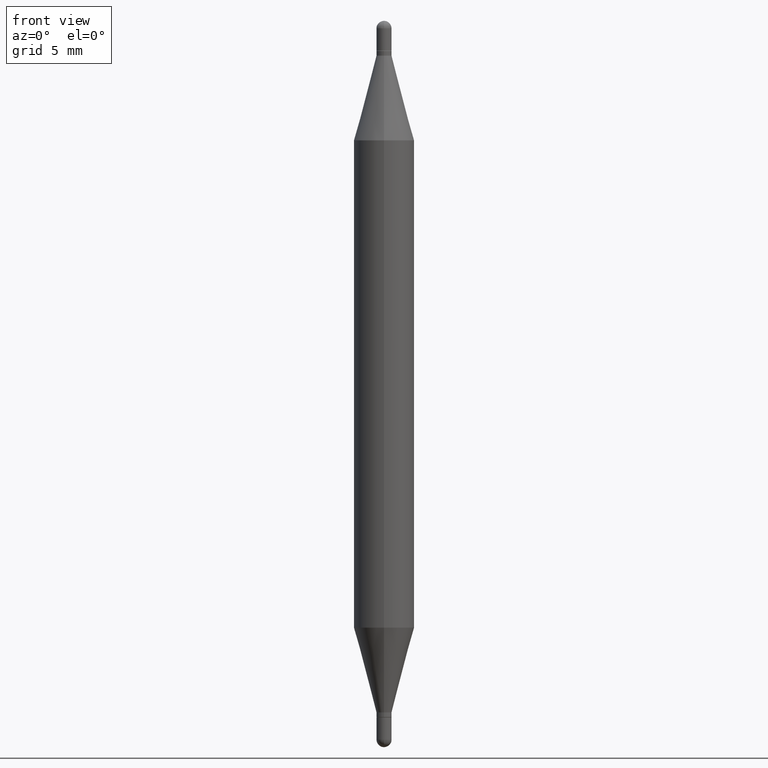
[diagram: clean part render]
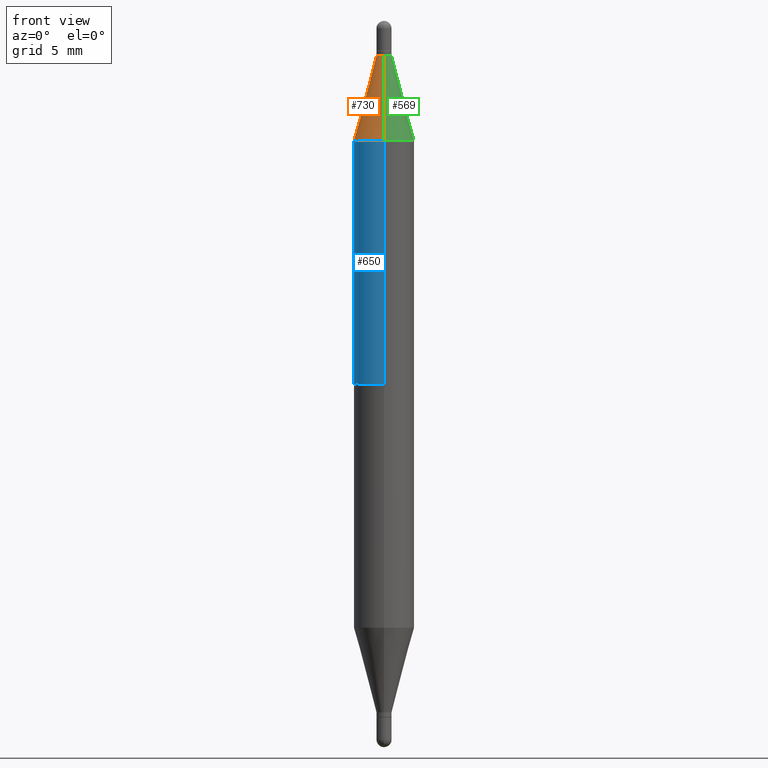
[diagram: same view with three faces highlighted in distinct colors, each labeled with its STEP entity id]
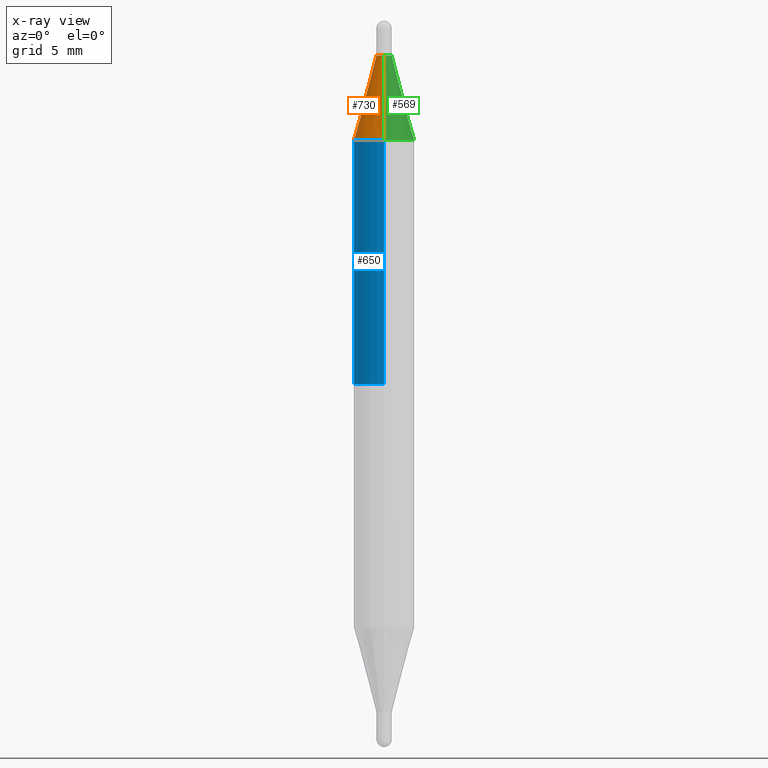
[diagram: x-ray of the same camera — body ghosted, the three highlighted faces saturated]
A machine part, front view with three faces highlighted in distinct colors.
The next image is the same camera in x-ray (body ghosted, the three faces saturated) — at least one of them is partly hidden behind the body in this view.
Their STEP definitions:

[orange] entity #730 — the highlighted conical surface has half-angle 15 deg.
#9 = ORIENTED_EDGE ( 'NONE', *, *, #171, .F. ) ;
#23 = DIRECTION ( 'NONE',  ( 2.448446106568060842E-29, 3.483878130583589894E-15, 1.000000000000000000 ) ) ;
#32 = DIRECTION ( 'NONE',  ( -2.448446106568060842E-29, -3.483878130583589894E-15, -1.000000000000000000 ) ) ;
#65 = EDGE_CURVE ( 'NONE', #862, #505, #986, .T. ) ;
#92 = VERTEX_POINT ( 'NONE', #566 ) ;
#94 = CARTESIAN_POINT ( 'NONE',  ( -4.364351673553608545E-16, -0.06250000000000084655, -0.2470331828749792180 ) ) ;
#118 = DIRECTION ( 'NONE',  ( 2.448446106568060842E-29, 3.483878130583589894E-15, 1.000000000000000000 ) ) ;
#120 = AXIS2_PLACEMENT_3D ( 'NONE', #896, #118, #815 ) ;
#146 = EDGE_CURVE ( 'NONE', #92, #505, #374, .T. ) ;
#171 = EDGE_CURVE ( 'NONE', #941, #92, #892, .T. ) ;
#172 = VECTOR ( 'NONE', #810, 39.37007874015748854 ) ;
#212 = CARTESIAN_POINT ( 'NONE',  ( 3.496381040179191585E-29, -2.533438838923632443E-16, -0.07199999999999993905 ) ) ;
#221 = CARTESIAN_POINT ( 'NONE',  ( 1.070237687652696216E-16, 0.01559999999999956734, -0.07199999999999999456 ) ) ;
#269 = DIRECTION ( 'NONE',  ( -6.982962677686265922E-15, -1.000000000000000000, 3.278217592397116257E-15 ) ) ;
#373 = CONICAL_SURFACE ( 'NONE', #803, 0.01559999999999982234, 0.2617993877991515173 ) ;
#374 = LINE ( 'NONE', #392, #172 ) ;
#392 = CARTESIAN_POINT ( 'NONE',  ( -1.089342177718695287E-16, -0.01560000000000007561, -0.07199999999999989742 ) ) ;
#505 = VERTEX_POINT ( 'NONE', #94 ) ;
#508 = EDGE_LOOP ( 'NONE', ( #9, #850, #526, #1102 ) ) ;
#526 = ORIENTED_EDGE ( 'NONE', *, *, #65, .T. ) ;
#554 = CARTESIAN_POINT ( 'NONE',  ( 4.287811248607512910E-16, 0.06249999999999911876, -0.2470331828749796621 ) ) ;
#559 = FACE_OUTER_BOUND ( 'NONE', #508, .T. ) ;
#566 = CARTESIAN_POINT ( 'NONE',  ( -1.089342177718695287E-16, -0.01560000000000007561, -0.07199999999999989742 ) ) ;
#618 = CARTESIAN_POINT ( 'NONE',  ( 3.067821725048732845E-29, -8.631381618369439646E-16, -0.2470331828749794401 ) ) ;
#635 = CARTESIAN_POINT ( 'NONE',  ( 1.070237687652701516E-16, 0.01559999999999956734, -0.07199999999999999456 ) ) ;
#712 = DIRECTION ( 'NONE',  ( -6.982962677686265133E-15, -1.000000000000000000, 3.283471146231123028E-15 ) ) ;
#730 = ADVANCED_FACE ( 'NONE', ( #559 ), #373, .T. ) ;
#749 = DIRECTION ( 'NONE',  ( 1.775627540710973780E-15, 0.2588190451025194627, -0.9659258262890687563 ) ) ;
#768 = AXIS2_PLACEMENT_3D ( 'NONE', #618, #23, #269 ) ;
#803 = AXIS2_PLACEMENT_3D ( 'NONE', #212, #32, #712 ) ;
#810 = DIRECTION ( 'NONE',  ( -1.807323732225338422E-15, -0.2588190451025261241, -0.9659258262890667579 ) ) ;
#815 = DIRECTION ( 'NONE',  ( -6.982962677686265133E-15, -1.000000000000000000, 3.283471146231123028E-15 ) ) ;
#850 = ORIENTED_EDGE ( 'NONE', *, *, #1005, .T. ) ;
#862 = VERTEX_POINT ( 'NONE', #554 ) ;
#892 = CIRCLE ( 'NONE', #120, 0.01559999999999982234 ) ;
#896 = CARTESIAN_POINT ( 'NONE',  ( 3.496381040179191585E-29, -2.533438838923632443E-16, -0.07199999999999993905 ) ) ;
#941 = VERTEX_POINT ( 'NONE', #635 ) ;
#962 = VECTOR ( 'NONE', #749, 39.37007874015747433 ) ;
#986 = CIRCLE ( 'NONE', #768, 0.06249999999999999306 ) ;
#1005 = EDGE_CURVE ( 'NONE', #941, #862, #1012, .T. ) ;
#1012 = LINE ( 'NONE', #221, #962 ) ;
#1102 = ORIENTED_EDGE ( 'NONE', *, *, #146, .F. ) ;

[blue] entity #650 — the highlighted cylindrical surface (edge-blend (fillet) strip) has radius 1.5875 mm, axis along (-0, -0, -1).
#12 = AXIS2_PLACEMENT_3D ( 'NONE', #552, #894, #1060 ) ;
#23 = DIRECTION ( 'NONE',  ( 2.448446106568060842E-29, 3.483878130583589894E-15, 1.000000000000000000 ) ) ;
#39 = DIRECTION ( 'NONE',  ( -2.448446106568060842E-29, -3.483878130583589894E-15, -1.000000000000000000 ) ) ;
#47 = CIRCLE ( 'NONE', #825, 0.06250000000000000000 ) ;
#65 = EDGE_CURVE ( 'NONE', #862, #505, #986, .T. ) ;
#72 = EDGE_LOOP ( 'NONE', ( #592, #782, #873, #258 ) ) ;
#94 = CARTESIAN_POINT ( 'NONE',  ( -4.364351673553608545E-16, -0.06250000000000084655, -0.2470331828749792180 ) ) ;
#99 = VECTOR ( 'NONE', #39, 39.37007874015748143 ) ;
#124 = FACE_OUTER_BOUND ( 'NONE', #72, .T. ) ;
#164 = DIRECTION ( 'NONE',  ( 0.000000000000000000, 1.000000000000000000, -4.370956789862821150E-15 ) ) ;
#218 = EDGE_CURVE ( 'NONE', #679, #601, #47, .T. ) ;
#258 = ORIENTED_EDGE ( 'NONE', *, *, #965, .F. ) ;
#269 = DIRECTION ( 'NONE',  ( -6.982962677686265922E-15, -1.000000000000000000, 3.278217592397116257E-15 ) ) ;
#290 = LINE ( 'NONE', #1048, #99 ) ;
#505 = VERTEX_POINT ( 'NONE', #94 ) ;
#552 = CARTESIAN_POINT ( 'NONE',  ( 0.000000000000000000, -5.228321854365732350E-15, -1.500000000000000444 ) ) ;
#554 = CARTESIAN_POINT ( 'NONE',  ( 4.287811248607512910E-16, 0.06249999999999911876, -0.2470331828749796621 ) ) ;
#564 = LINE ( 'NONE', #991, #1098 ) ;
#577 = DIRECTION ( 'NONE',  ( -0.000000000000000000, -3.485547902910486918E-15, -1.000000000000000000 ) ) ;
#580 = EDGE_CURVE ( 'NONE', #862, #601, #564, .T. ) ;
#592 = ORIENTED_EDGE ( 'NONE', *, *, #65, .F. ) ;
#601 = VERTEX_POINT ( 'NONE', #634 ) ;
#618 = CARTESIAN_POINT ( 'NONE',  ( 3.067821725048732845E-29, -8.631381618369439646E-16, -0.2470331828749794401 ) ) ;
#634 = CARTESIAN_POINT ( 'NONE',  ( 4.287811248607452266E-16, 0.06249999999999738404, -0.7500000000000004441 ) ) ;
#639 = DIRECTION ( 'NONE',  ( -2.448446106568060842E-29, -3.483878130583589894E-15, -1.000000000000000000 ) ) ;
#650 = ADVANCED_FACE ( 'NONE', ( #124 ), #709, .T. ) ;
#679 = VERTEX_POINT ( 'NONE', #813 ) ;
#709 = CYLINDRICAL_SURFACE ( 'NONE', #12, 0.06250000000000000000 ) ;
#768 = AXIS2_PLACEMENT_3D ( 'NONE', #618, #23, #269 ) ;
#782 = ORIENTED_EDGE ( 'NONE', *, *, #580, .T. ) ;
#813 = CARTESIAN_POINT ( 'NONE',  ( -4.364351673553731805E-16, -0.06250000000000260902, -0.7499999999999998890 ) ) ;
#825 = AXIS2_PLACEMENT_3D ( 'NONE', #1104, #577, #164 ) ;
#862 = VERTEX_POINT ( 'NONE', #554 ) ;
#873 = ORIENTED_EDGE ( 'NONE', *, *, #218, .F. ) ;
#894 = DIRECTION ( 'NONE',  ( -2.448446106568060842E-29, -3.483878130583589894E-15, -1.000000000000000000 ) ) ;
#965 = EDGE_CURVE ( 'NONE', #505, #679, #290, .T. ) ;
#986 = CIRCLE ( 'NONE', #768, 0.06249999999999999306 ) ;
#991 = CARTESIAN_POINT ( 'NONE',  ( 4.287811248607206733E-16, 0.06249999999999477501, -1.500000000000000666 ) ) ;
#1048 = CARTESIAN_POINT ( 'NONE',  ( -4.364351673553916201E-16, -0.06250000000000521805, -1.500000000000000222 ) ) ;
#1060 = DIRECTION ( 'NONE',  ( -6.982962677686265922E-15, -1.000000000000000000, 4.370956789862821150E-15 ) ) ;
#1098 = VECTOR ( 'NONE', #639, 39.37007874015748143 ) ;
#1104 = CARTESIAN_POINT ( 'NONE',  ( 1.836334579926045982E-29, -2.615413256428038450E-15, -0.7500000000000002220 ) ) ;

[green] entity #569 — the highlighted conical surface has half-angle 15 deg.
#34 = DIRECTION ( 'NONE',  ( -6.982962677686265133E-15, -1.000000000000000000, 3.283471146231123028E-15 ) ) ;
#92 = VERTEX_POINT ( 'NONE', #566 ) ;
#94 = CARTESIAN_POINT ( 'NONE',  ( -4.364351673553608545E-16, -0.06250000000000084655, -0.2470331828749792180 ) ) ;
#146 = EDGE_CURVE ( 'NONE', #92, #505, #374, .T. ) ;
#172 = VECTOR ( 'NONE', #810, 39.37007874015748854 ) ;
#221 = CARTESIAN_POINT ( 'NONE',  ( 1.070237687652696216E-16, 0.01559999999999956734, -0.07199999999999999456 ) ) ;
#247 = AXIS2_PLACEMENT_3D ( 'NONE', #388, #633, #481 ) ;
#302 = FACE_OUTER_BOUND ( 'NONE', #843, .T. ) ;
#306 = DIRECTION ( 'NONE',  ( -6.982962677686265133E-15, -1.000000000000000000, 3.283471146231123028E-15 ) ) ;
#374 = LINE ( 'NONE', #392, #172 ) ;
#386 = CARTESIAN_POINT ( 'NONE',  ( 3.496381040179191585E-29, -2.533438838923632443E-16, -0.07199999999999993905 ) ) ;
#388 = CARTESIAN_POINT ( 'NONE',  ( 3.067821725048732845E-29, -8.631381618369439646E-16, -0.2470331828749794401 ) ) ;
#392 = CARTESIAN_POINT ( 'NONE',  ( -1.089342177718695287E-16, -0.01560000000000007561, -0.07199999999999989742 ) ) ;
#481 = DIRECTION ( 'NONE',  ( -6.982962677686265922E-15, -1.000000000000000000, 3.278217592397116257E-15 ) ) ;
#505 = VERTEX_POINT ( 'NONE', #94 ) ;
#554 = CARTESIAN_POINT ( 'NONE',  ( 4.287811248607512910E-16, 0.06249999999999911876, -0.2470331828749796621 ) ) ;
#566 = CARTESIAN_POINT ( 'NONE',  ( -1.089342177718695287E-16, -0.01560000000000007561, -0.07199999999999989742 ) ) ;
#569 = ADVANCED_FACE ( 'NONE', ( #302 ), #673, .T. ) ;
#633 = DIRECTION ( 'NONE',  ( 2.448446106568060842E-29, 3.483878130583589894E-15, 1.000000000000000000 ) ) ;
#635 = CARTESIAN_POINT ( 'NONE',  ( 1.070237687652701516E-16, 0.01559999999999956734, -0.07199999999999999456 ) ) ;
#640 = AXIS2_PLACEMENT_3D ( 'NONE', #820, #737, #306 ) ;
#646 = DIRECTION ( 'NONE',  ( -2.448446106568060842E-29, -3.483878130583589894E-15, -1.000000000000000000 ) ) ;
#667 = ORIENTED_EDGE ( 'NONE', *, *, #693, .F. ) ;
#673 = CONICAL_SURFACE ( 'NONE', #930, 0.01559999999999982234, 0.2617993877991515173 ) ;
#693 = EDGE_CURVE ( 'NONE', #92, #941, #821, .T. ) ;
#732 = CIRCLE ( 'NONE', #247, 0.06249999999999999306 ) ;
#737 = DIRECTION ( 'NONE',  ( 2.448446106568060842E-29, 3.483878130583589894E-15, 1.000000000000000000 ) ) ;
#749 = DIRECTION ( 'NONE',  ( 1.775627540710973780E-15, 0.2588190451025194627, -0.9659258262890687563 ) ) ;
#778 = EDGE_CURVE ( 'NONE', #505, #862, #732, .T. ) ;
#810 = DIRECTION ( 'NONE',  ( -1.807323732225338422E-15, -0.2588190451025261241, -0.9659258262890667579 ) ) ;
#820 = CARTESIAN_POINT ( 'NONE',  ( 3.496381040179191585E-29, -2.533438838923632443E-16, -0.07199999999999993905 ) ) ;
#821 = CIRCLE ( 'NONE', #640, 0.01559999999999982234 ) ;
#843 = EDGE_LOOP ( 'NONE', ( #1055, #667, #1069, #932 ) ) ;
#862 = VERTEX_POINT ( 'NONE', #554 ) ;
#930 = AXIS2_PLACEMENT_3D ( 'NONE', #386, #646, #34 ) ;
#932 = ORIENTED_EDGE ( 'NONE', *, *, #778, .T. ) ;
#941 = VERTEX_POINT ( 'NONE', #635 ) ;
#962 = VECTOR ( 'NONE', #749, 39.37007874015747433 ) ;
#1005 = EDGE_CURVE ( 'NONE', #941, #862, #1012, .T. ) ;
#1012 = LINE ( 'NONE', #221, #962 ) ;
#1055 = ORIENTED_EDGE ( 'NONE', *, *, #1005, .F. ) ;
#1069 = ORIENTED_EDGE ( 'NONE', *, *, #146, .T. ) ;